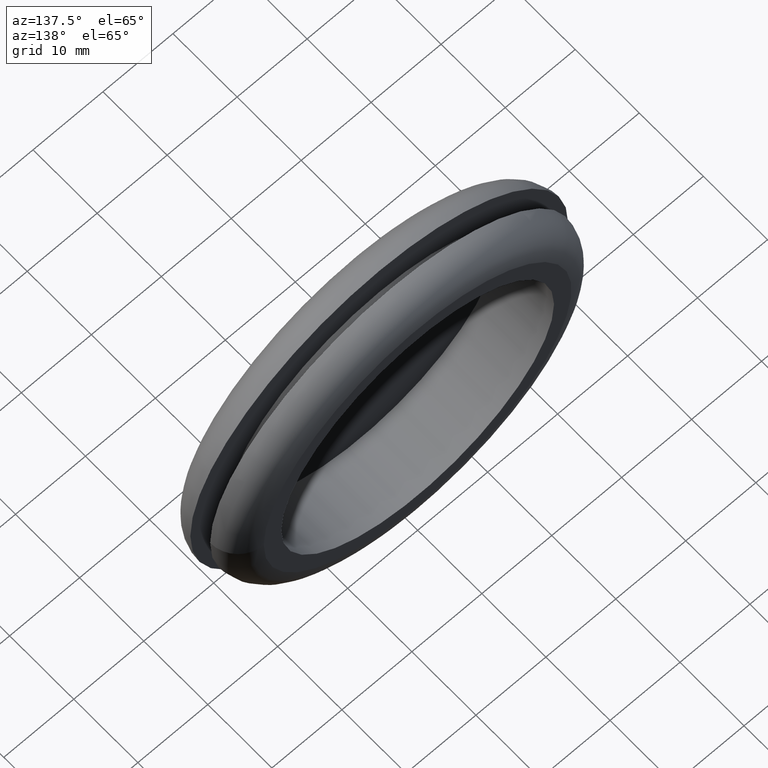
[diagram: clean part render]
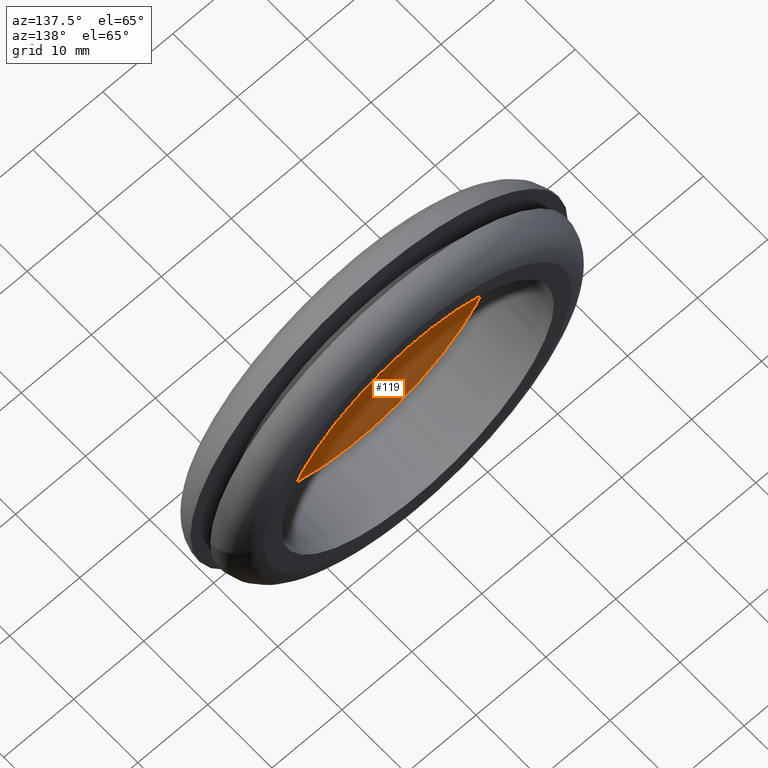
[diagram: same view with one face highlighted and labeled with its STEP entity id]
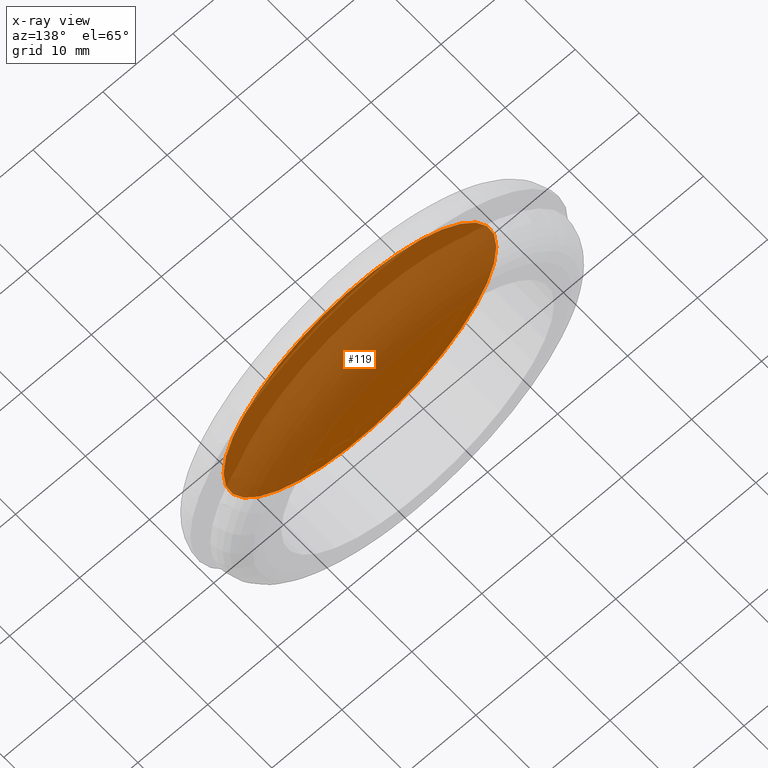
[diagram: x-ray of the same camera — body ghosted, the highlighted face saturated]
A machine part, auxiliary view. The second image highlights one B-rep face of the part: STEP entity #119.
The next image is the same camera in x-ray: the body ghosted, the highlighted face saturated — about 80% of this face is hidden behind the body in this view.
In plain terms, the highlighted planar face has unit normal (-0, 1, 0).
Its self-contained STEP definition (entity closure, byte-faithful):
#18=PLANE('',#137);
#35=FACE_OUTER_BOUND('',#49,.T.);
#49=EDGE_LOOP('',(#99));
#66=CIRCLE('',#135,19.5);
#76=VERTEX_POINT('',#204);
#86=EDGE_CURVE('',#76,#76,#66,.T.);
#99=ORIENTED_EDGE('',*,*,#86,.F.);
#119=ADVANCED_FACE('',(#35),#18,.T.);
#135=AXIS2_PLACEMENT_3D('',#205,#164,#165);
#137=AXIS2_PLACEMENT_3D('',#208,#168,#169);
#164=DIRECTION('center_axis',(0.,-1.,0.));
#165=DIRECTION('ref_axis',(1.,0.,0.));
#168=DIRECTION('center_axis',(-5.55111512312578E-17,1.,0.));
#169=DIRECTION('ref_axis',(0.,0.,1.));
#204=CARTESIAN_POINT('',(19.5,1.,0.));
#205=CARTESIAN_POINT('Origin',(0.,1.,0.));
#208=CARTESIAN_POINT('Origin',(-9.58131959305996E-16,1.,3.79563427222276E-16));